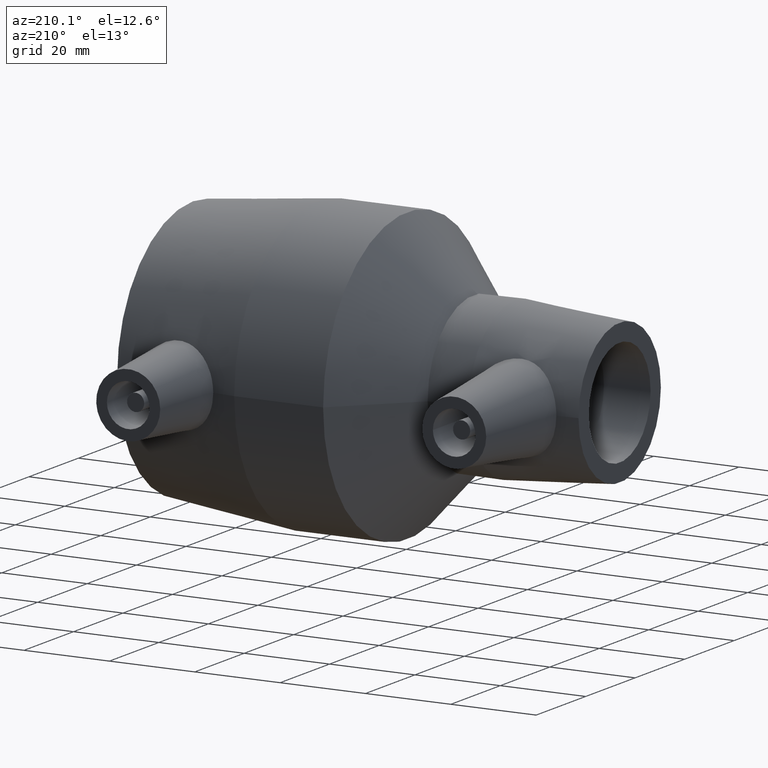
[diagram: clean part render]
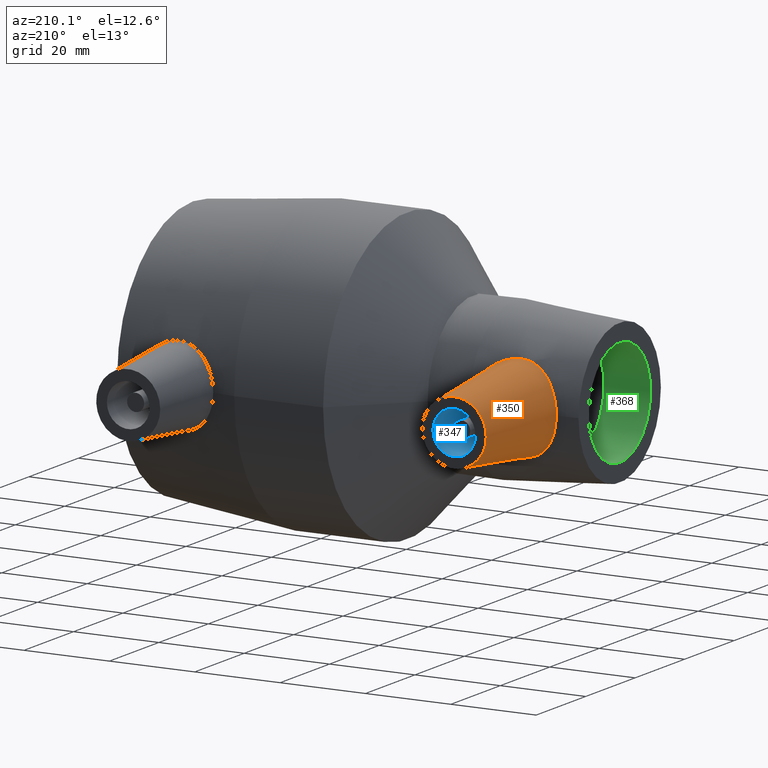
[diagram: same view with three faces highlighted in distinct colors, each labeled with its STEP entity id]
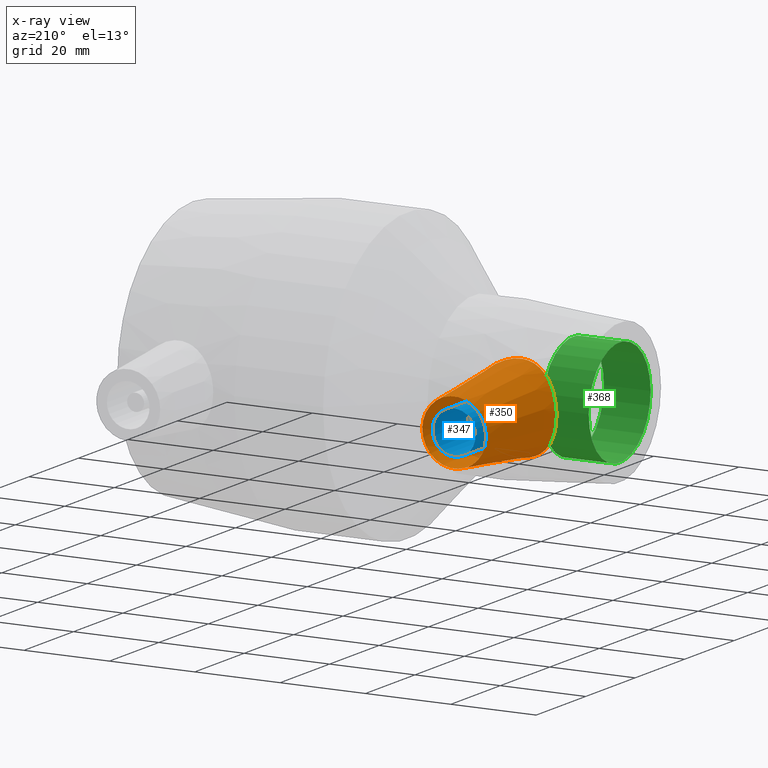
[diagram: x-ray of the same camera — body ghosted, the three highlighted faces saturated]
A machine part, auxiliary view with three faces highlighted in distinct colors.
The next image is the same camera in x-ray (body ghosted, the three faces saturated) — at least one of them is partly hidden behind the body in this view.
Their STEP definitions:

[orange] entity #350 — the highlighted conical surface has half-angle 6 deg.
#16=B_SPLINE_CURVE_WITH_KNOTS('',3,(#631,#632,#633,#634,#635,#636,#637,
#638,#639,#640,#641,#642),.UNSPECIFIED.,.F.,.F.,(4,2,2,2,2,4),(4.88665153579673,
5.05417954855462,5.45247495804575,5.86923744466963,6.07761868798157,6.28599993129352),
 .UNSPECIFIED.);
#17=B_SPLINE_CURVE_WITH_KNOTS('',3,(#644,#645,#646,#647,#648,#649),
 .UNSPECIFIED.,.F.,.F.,(4,2,4),(1.39934839549605,1.63011579223001,1.860883188964),
 .UNSPECIFIED.);
#18=B_SPLINE_CURVE_WITH_KNOTS('',3,(#650,#651,#652,#653,#654,#655,#656,
#657,#658,#659,#660,#661,#662,#663,#664,#665,#666,#667,#668,#669,#670,#671,
#672,#673,#674,#675,#676,#677,#678,#679,#680,#681),.UNSPECIFIED.,.F.,.F.,
(4,2,2,2,2,2,2,2,2,2,2,2,2,2,2,4),(6.28599993129352,6.47479303284518,6.66358613439684,
7.04117233750017,7.42002822110521,7.79888410471025,8.17773998831529,8.55659587192033,
8.93418207502366,9.12297517657532,9.31176827812699,9.52014952143893,9.72853076475087,
10.1452932513748,10.5435886608659,10.7111166736238),.UNSPECIFIED.);
#20=CONICAL_SURFACE('',#394,7.5,6.);
#37=FACE_BOUND('',#122,.T.);
#80=FACE_OUTER_BOUND('',#121,.T.);
#121=EDGE_LOOP('',(#279));
#122=EDGE_LOOP('',(#280,#281,#282));
#172=CIRCLE('',#393,7.5);
#203=VERTEX_POINT('',#626);
#204=VERTEX_POINT('',#629);
#205=VERTEX_POINT('',#630);
#206=VERTEX_POINT('',#643);
#235=EDGE_CURVE('',#203,#203,#172,.T.);
#236=EDGE_CURVE('',#204,#205,#16,.T.);
#237=EDGE_CURVE('',#204,#206,#17,.T.);
#238=EDGE_CURVE('',#205,#206,#18,.T.);
#279=ORIENTED_EDGE('',*,*,#235,.T.);
#280=ORIENTED_EDGE('',*,*,#236,.F.);
#281=ORIENTED_EDGE('',*,*,#237,.T.);
#282=ORIENTED_EDGE('',*,*,#238,.F.);
#350=ADVANCED_FACE('',(#80,#37),#20,.T.);
#393=AXIS2_PLACEMENT_3D('',#627,#477,#478);
#394=AXIS2_PLACEMENT_3D('',#628,#479,#480);
#477=DIRECTION('center_axis',(0.,-1.,0.));
#478=DIRECTION('ref_axis',(1.,0.,0.));
#479=DIRECTION('center_axis',(0.,-1.,0.));
#480=DIRECTION('ref_axis',(1.,0.,0.));
#626=CARTESIAN_POINT('',(-42.5,41.,9.18485099360515E-16));
#627=CARTESIAN_POINT('Origin',(-35.,41.,0.));
#628=CARTESIAN_POINT('Origin',(-35.,41.,0.));
#629=CARTESIAN_POINT('',(-25.4000000000017,18.3517625426005,2.33726583426115));
#630=CARTESIAN_POINT('',(-35.5140092796817,14.4594607800791,10.2766764879609));
#631=CARTESIAN_POINT('Ctrl Pts',(-25.4000000000017,18.3517625426004,2.33726583426115));
#632=CARTESIAN_POINT('Ctrl Pts',(-25.5282324729231,18.2703547548582,2.90013362591393));
#633=CARTESIAN_POINT('Ctrl Pts',(-25.7036767081414,18.1597234719506,3.45402883909718));
#634=CARTESIAN_POINT('Ctrl Pts',(-26.439801645045,17.7060558020462,5.24938720263549));
#635=CARTESIAN_POINT('Ctrl Pts',(-27.2080921010174,17.2474480904009,6.38485035942976));
#636=CARTESIAN_POINT('Ctrl Pts',(-28.9862460537424,16.3095005494354,8.21234846033132));
#637=CARTESIAN_POINT('Ctrl Pts',(-30.1370921881838,15.7575395624176,9.0203502990003));
#638=CARTESIAN_POINT('Ctrl Pts',(-32.06353506114,15.0898214232419,9.81706336735225));
#639=CARTESIAN_POINT('Ctrl Pts',(-32.7393048530885,14.8947163220732,10.0157007695588));
#640=CARTESIAN_POINT('Ctrl Pts',(-34.1181354405037,14.6004633341305,10.2606968038414));
#641=CARTESIAN_POINT('Ctrl Pts',(-34.8213610200167,14.501919089343,10.3068526000004));
#642=CARTESIAN_POINT('Ctrl Pts',(-35.5140092796818,14.4594607800791,10.2766764879609));
#643=CARTESIAN_POINT('',(-25.4000000000017,18.3517625426004,-2.33726583426136));
#644=CARTESIAN_POINT('Ctrl Pts',(-25.4000000000017,18.3517625426004,2.33726583426115));
#645=CARTESIAN_POINT('Ctrl Pts',(-25.2233616368666,18.4639005841248,1.56192365209826));
#646=CARTESIAN_POINT('Ctrl Pts',(-25.1372316747408,18.5197610325906,0.769224655779871));
#647=CARTESIAN_POINT('Ctrl Pts',(-25.1372316747408,18.5197610325906,-0.769224655779938));
#648=CARTESIAN_POINT('Ctrl Pts',(-25.2233616368666,18.4639005841248,-1.5619236520984));
#649=CARTESIAN_POINT('Ctrl Pts',(-25.4000000000017,18.3517625426004,-2.33726583426135));
#650=CARTESIAN_POINT('Ctrl Pts',(-35.5140092796817,14.4594607800791,10.2766764879609));
#651=CARTESIAN_POINT('Ctrl Pts',(-36.1415475895034,14.4209936140081,10.2493369746047));
#652=CARTESIAN_POINT('Ctrl Pts',(-36.7825559871372,14.4273328935048,10.1581393522281));
#653=CARTESIAN_POINT('Ctrl Pts',(-38.0423065030613,14.5297420593379,9.84318088843987));
#654=CARTESIAN_POINT('Ctrl Pts',(-38.6611095749043,14.6254224295879,9.61953732773133));
#655=CARTESIAN_POINT('Ctrl Pts',(-40.4219557716223,15.0034065976146,8.77484468523694));
#656=CARTESIAN_POINT('Ctrl Pts',(-41.46863550516,15.3745369881124,7.97066238578509));
#657=CARTESIAN_POINT('Ctrl Pts',(-43.1102207601958,16.0463526001779,6.17854328759494));
#658=CARTESIAN_POINT('Ctrl Pts',(-43.8248870461413,16.3978436485717,5.05781095394543));
#659=CARTESIAN_POINT('Ctrl Pts',(-44.7804275216267,16.8894174271121,2.60073044611453));
#660=CARTESIAN_POINT('Ctrl Pts',(-45.0199247157933,17.0245178567391,1.26285294535013));
#661=CARTESIAN_POINT('Ctrl Pts',(-45.0199247157933,17.0245178567391,-1.26285294535013));
#662=CARTESIAN_POINT('Ctrl Pts',(-44.7804275216267,16.8894174271121,-2.60073044611453));
#663=CARTESIAN_POINT('Ctrl Pts',(-43.8248870461413,16.3978436485717,-5.05781095394543));
#664=CARTESIAN_POINT('Ctrl Pts',(-43.1102207601958,16.0463526001779,-6.17854328759494));
#665=CARTESIAN_POINT('Ctrl Pts',(-41.4686355051601,15.3745369881124,-7.97066238578508));
#666=CARTESIAN_POINT('Ctrl Pts',(-40.4219557716223,15.0034065976146,-8.77484468523695));
#667=CARTESIAN_POINT('Ctrl Pts',(-38.6611095749043,14.6254224295879,-9.61953732773134));
#668=CARTESIAN_POINT('Ctrl Pts',(-38.0423065030613,14.5297420593379,-9.84318088843987));
#669=CARTESIAN_POINT('Ctrl Pts',(-36.7825559871372,14.4273328935048,-10.1581393522281));
#670=CARTESIAN_POINT('Ctrl Pts',(-36.1415475895034,14.4209936140081,-10.2493369746047));
#671=CARTESIAN_POINT('Ctrl Pts',(-34.8213610200167,14.501919089343,-10.3068526000004));
#672=CARTESIAN_POINT('Ctrl Pts',(-34.1181354405037,14.6004633341305,-10.2606968038414));
#673=CARTESIAN_POINT('Ctrl Pts',(-32.7393048530885,14.8947163220732,-10.0157007695588));
#674=CARTESIAN_POINT('Ctrl Pts',(-32.06353506114,15.0898214232419,-9.81706336735225));
#675=CARTESIAN_POINT('Ctrl Pts',(-30.1370921881838,15.7575395624176,-9.0203502990003));
#676=CARTESIAN_POINT('Ctrl Pts',(-28.9862460537424,16.3095005494354,-8.21234846033133));
#677=CARTESIAN_POINT('Ctrl Pts',(-27.2080921010174,17.2474480904009,-6.38485035942977));
#678=CARTESIAN_POINT('Ctrl Pts',(-26.439801645045,17.7060558020462,-5.24938720263549));
#679=CARTESIAN_POINT('Ctrl Pts',(-25.7036767081414,18.1597234719506,-3.45402883909718));
#680=CARTESIAN_POINT('Ctrl Pts',(-25.528232472921,18.2703547548595,-2.90013362590672));
#681=CARTESIAN_POINT('Ctrl Pts',(-25.4,18.3517625426015,-2.33726583425381));

[blue] entity #347 — the highlighted cylindrical surface (bore or boss wall) has radius 5 mm, axis along (0, -1, 0).
#34=FACE_BOUND('',#116,.T.);
#61=CYLINDRICAL_SURFACE('',#388,5.);
#77=FACE_OUTER_BOUND('',#115,.T.);
#115=EDGE_LOOP('',(#273));
#116=EDGE_LOOP('',(#274));
#170=CIRCLE('',#389,5.);
#171=CIRCLE('',#390,5.);
#201=VERTEX_POINT('',#620);
#202=VERTEX_POINT('',#622);
#233=EDGE_CURVE('',#201,#201,#170,.T.);
#234=EDGE_CURVE('',#202,#202,#171,.T.);
#273=ORIENTED_EDGE('',*,*,#233,.T.);
#274=ORIENTED_EDGE('',*,*,#234,.F.);
#347=ADVANCED_FACE('',(#77,#34),#61,.F.);
#388=AXIS2_PLACEMENT_3D('',#619,#467,#468);
#389=AXIS2_PLACEMENT_3D('',#621,#469,#470);
#390=AXIS2_PLACEMENT_3D('',#623,#471,#472);
#467=DIRECTION('center_axis',(0.,-1.,0.));
#468=DIRECTION('ref_axis',(-1.,0.,0.));
#469=DIRECTION('center_axis',(0.,-1.,0.));
#470=DIRECTION('ref_axis',(-1.,0.,0.));
#471=DIRECTION('center_axis',(0.,-1.,0.));
#472=DIRECTION('ref_axis',(-1.,0.,0.));
#619=CARTESIAN_POINT('Origin',(-35.,41.,0.));
#620=CARTESIAN_POINT('',(-30.,27.,-6.12323399573677E-16));
#621=CARTESIAN_POINT('Origin',(-35.,27.,0.));
#622=CARTESIAN_POINT('',(-30.,41.,-6.12323399573677E-16));
#623=CARTESIAN_POINT('Origin',(-35.,41.,0.));

[green] entity #368 — the highlighted cylindrical surface (bore or boss wall) has radius 12.5 mm, axis along (1, 0, 0).
#55=FACE_BOUND('',#158,.T.);
#68=CYLINDRICAL_SURFACE('',#430,12.5);
#98=FACE_OUTER_BOUND('',#157,.T.);
#157=EDGE_LOOP('',(#319));
#158=EDGE_LOOP('',(#320));
#190=CIRCLE('',#429,12.5);
#191=CIRCLE('',#431,12.5);
#222=VERTEX_POINT('',#731);
#223=VERTEX_POINT('',#734);
#256=EDGE_CURVE('',#222,#222,#190,.T.);
#257=EDGE_CURVE('',#223,#223,#191,.T.);
#319=ORIENTED_EDGE('',*,*,#257,.F.);
#320=ORIENTED_EDGE('',*,*,#256,.T.);
#368=ADVANCED_FACE('',(#98,#55),#68,.F.);
#429=AXIS2_PLACEMENT_3D('',#732,#549,#550);
#430=AXIS2_PLACEMENT_3D('',#733,#551,#552);
#431=AXIS2_PLACEMENT_3D('',#735,#553,#554);
#549=DIRECTION('center_axis',(1.,1.83697019872103E-16,0.));
#550=DIRECTION('ref_axis',(0.,0.,-1.));
#551=DIRECTION('center_axis',(1.,1.83697019872103E-16,0.));
#552=DIRECTION('ref_axis',(-1.27220423054671E-16,1.,0.));
#553=DIRECTION('center_axis',(1.,1.83697019872103E-16,0.));
#554=DIRECTION('ref_axis',(0.,0.,-1.));
#731=CARTESIAN_POINT('',(-39.0666666666667,12.5,0.));
#732=CARTESIAN_POINT('Origin',(-39.0666666666667,2.00842075060166E-15,0.));
#733=CARTESIAN_POINT('Origin',(-44.5333333333333,1.00421037530083E-15,0.));
#734=CARTESIAN_POINT('',(-50.,12.5,0.));
#735=CARTESIAN_POINT('Origin',(-50.,7.39557098644699E-31,0.));